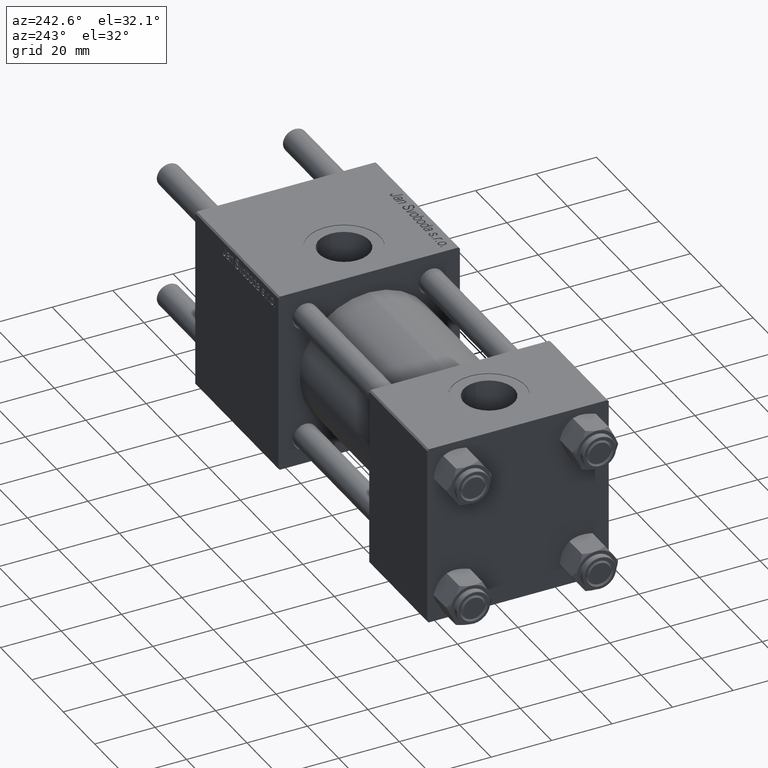
[diagram: clean part render]
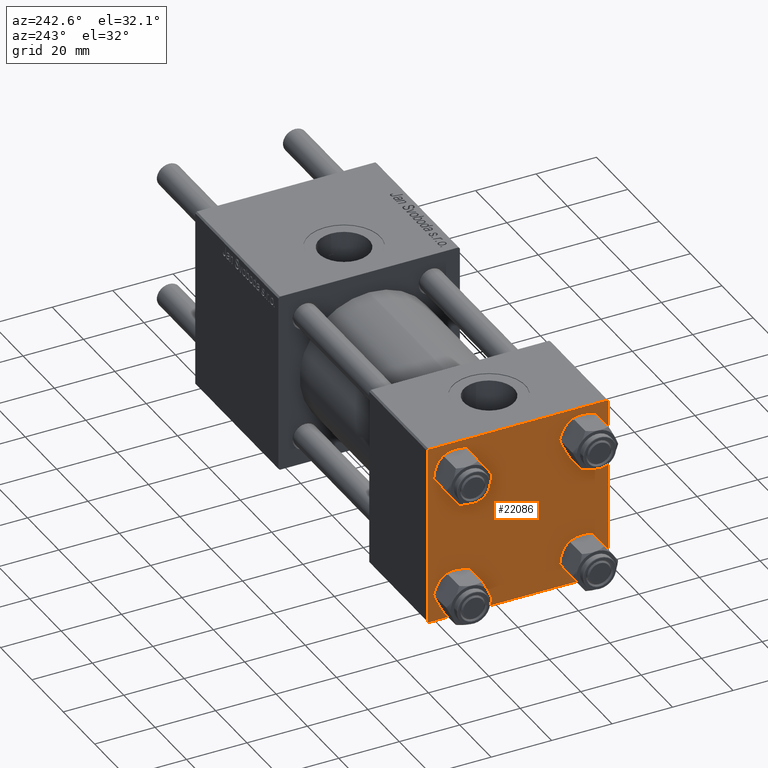
[diagram: same view with one face highlighted and labeled with its STEP entity id]
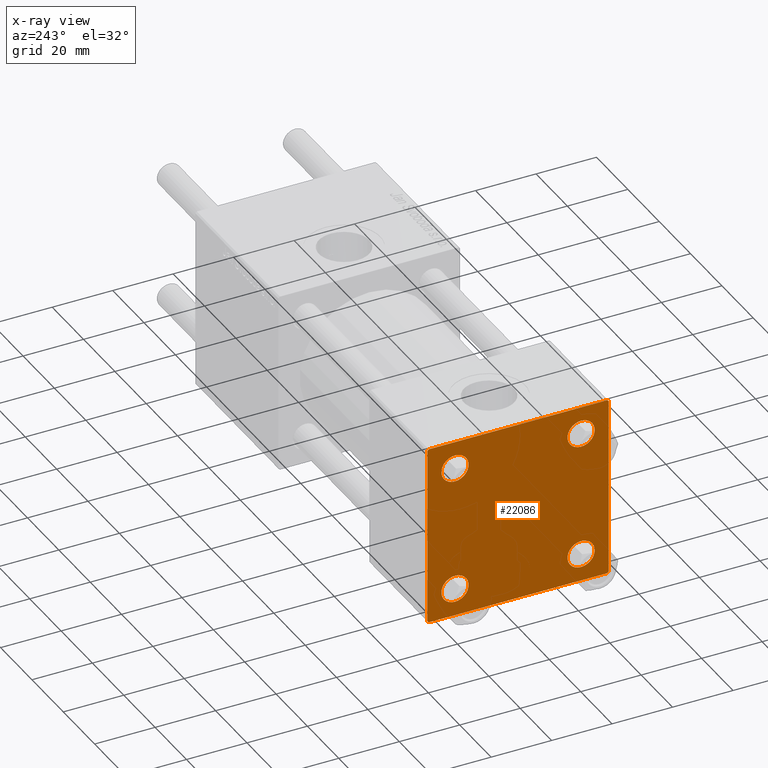
[diagram: x-ray of the same camera — body ghosted, the highlighted face saturated]
A machine part, auxiliary view. The second image highlights one B-rep face of the part: STEP entity #22086.
The next image is the same camera in x-ray: the body ghosted, the highlighted face saturated — about 0% of this face is hidden behind the body in this view.
In plain terms, the highlighted planar face has unit normal (-1, 0, 0).
Its self-contained STEP definition (entity closure, byte-faithful):
#15 = CARTESIAN_POINT ( 'NONE',  ( 0.000000000000000000, -29.50000000000000000, -30.00000000000000711 ) ) ;
#100 = ORIENTED_EDGE ( 'NONE', *, *, #23515, .T. ) ;
#159 = AXIS2_PLACEMENT_3D ( 'NONE', #43685, #3126, #12296 ) ;
#1147 = VERTEX_POINT ( 'NONE', #9539 ) ;
#1240 = DIRECTION ( 'NONE',  ( 1.000000000000000000, -0.000000000000000000, 0.000000000000000000 ) ) ;
#1511 = VERTEX_POINT ( 'NONE', #38172 ) ;
#1673 = CARTESIAN_POINT ( 'NONE',  ( 0.000000000000000000, 29.99999999999999289, -30.00000000000000000 ) ) ;
#2755 = CIRCLE ( 'NONE', #39615, 4.500000000000017764 ) ;
#2804 = DIRECTION ( 'NONE',  ( 0.000000000000000000, 0.7071067811865474617, -0.7071067811865474617 ) ) ;
#2825 = CARTESIAN_POINT ( 'NONE',  ( 0.000000000000000000, 29.99999999999999289, -29.50000000000000000 ) ) ;
#3002 = CARTESIAN_POINT ( 'NONE',  ( 0.000000000000000000, -29.49999999999998579, 29.99999999999999289 ) ) ;
#3080 = ORIENTED_EDGE ( 'NONE', *, *, #20965, .T. ) ;
#3126 = DIRECTION ( 'NONE',  ( -1.000000000000000000, 0.000000000000000000, -0.000000000000000000 ) ) ;
#4496 = VERTEX_POINT ( 'NONE', #27670 ) ;
#4851 = EDGE_CURVE ( 'NONE', #5931, #39167, #8018, .T. ) ;
#5786 = ORIENTED_EDGE ( 'NONE', *, *, #28157, .F. ) ;
#5931 = VERTEX_POINT ( 'NONE', #34797 ) ;
#5942 = CARTESIAN_POINT ( 'NONE',  ( 0.000000000000000000, 20.84999999999999787, -20.85000000000000142 ) ) ;
#6389 = FACE_BOUND ( 'NONE', #25467, .T. ) ;
#6963 = DIRECTION ( 'NONE',  ( 0.000000000000000000, -1.000000000000000000, -1.156482317317871725E-16 ) ) ;
#7235 = LINE ( 'NONE', #34487, #10612 ) ;
#7562 = FACE_BOUND ( 'NONE', #11647, .T. ) ;
#7895 = EDGE_LOOP ( 'NONE', ( #46586, #49580, #11431, #24378, #5786, #100, #47314, #3080 ) ) ;
#8018 = CIRCLE ( 'NONE', #15597, 4.500000000000017764 ) ;
#8142 = CIRCLE ( 'NONE', #23288, 4.500000000000017764 ) ;
#9052 = EDGE_CURVE ( 'NONE', #39167, #5931, #8142, .T. ) ;
#9539 = CARTESIAN_POINT ( 'NONE',  ( 0.000000000000000000, 29.49999999999999289, 30.00000000000000000 ) ) ;
#9681 = LINE ( 'NONE', #27473, #38939 ) ;
#9683 = VECTOR ( 'NONE', #56578, 1000.000000000000114 ) ;
#10342 = CARTESIAN_POINT ( 'NONE',  ( 0.000000000000000000, -20.84999999999999076, 25.35000000000002274 ) ) ;
#10385 = VERTEX_POINT ( 'NONE', #45700 ) ;
#10612 = VECTOR ( 'NONE', #2804, 1000.000000000000114 ) ;
#11431 = ORIENTED_EDGE ( 'NONE', *, *, #40084, .T. ) ;
#11453 = DIRECTION ( 'NONE',  ( 0.000000000000000000, 0.000000000000000000, 1.000000000000000000 ) ) ;
#11647 = EDGE_LOOP ( 'NONE', ( #37422, #13680 ) ) ;
#11668 = DIRECTION ( 'NONE',  ( 1.000000000000000000, -0.000000000000000000, 0.000000000000000000 ) ) ;
#12296 = DIRECTION ( 'NONE',  ( -0.000000000000000000, 0.000000000000000000, 1.000000000000000000 ) ) ;
#12581 = DIRECTION ( 'NONE',  ( 0.000000000000000000, 0.000000000000000000, 1.000000000000000000 ) ) ;
#13680 = ORIENTED_EDGE ( 'NONE', *, *, #40931, .T. ) ;
#13860 = EDGE_CURVE ( 'NONE', #20562, #10385, #32887, .T. ) ;
#14122 = CARTESIAN_POINT ( 'NONE',  ( 0.000000000000000000, 29.99999999999999289, 30.00000000000000000 ) ) ;
#15581 = LINE ( 'NONE', #20323, #54511 ) ;
#15597 = AXIS2_PLACEMENT_3D ( 'NONE', #5942, #1240, #36774 ) ;
#16812 = ORIENTED_EDGE ( 'NONE', *, *, #4851, .T. ) ;
#16900 = DIRECTION ( 'NONE',  ( -0.000000000000000000, 0.7071067811865474617, 0.7071067811865474617 ) ) ;
#18278 = ORIENTED_EDGE ( 'NONE', *, *, #13860, .T. ) ;
#20032 = CARTESIAN_POINT ( 'NONE',  ( 0.000000000000000000, -20.84999999999999076, 20.85000000000000497 ) ) ;
#20179 = VECTOR ( 'NONE', #46271, 999.9999999999998863 ) ;
#20323 = CARTESIAN_POINT ( 'NONE',  ( 0.000000000000000000, 29.99999999999999289, 30.00000000000000000 ) ) ;
#20402 = EDGE_CURVE ( 'NONE', #24082, #50969, #24584, .T. ) ;
#20562 = VERTEX_POINT ( 'NONE', #27492 ) ;
#20654 = DIRECTION ( 'NONE',  ( 1.000000000000000000, -0.000000000000000000, 0.000000000000000000 ) ) ;
#20935 = DIRECTION ( 'NONE',  ( 1.000000000000000000, -0.000000000000000000, 0.000000000000000000 ) ) ;
#20965 = EDGE_CURVE ( 'NONE', #1147, #42459, #7235, .T. ) ;
#21228 = CARTESIAN_POINT ( 'NONE',  ( 0.000000000000000000, -20.84999999999999076, -20.85000000000000497 ) ) ;
#21319 = EDGE_LOOP ( 'NONE', ( #42212, #56373 ) ) ;
#21986 = EDGE_CURVE ( 'NONE', #1147, #26043, #23604, .T. ) ;
#22069 = DIRECTION ( 'NONE',  ( 1.000000000000000000, -0.000000000000000000, 0.000000000000000000 ) ) ;
#22086 = ADVANCED_FACE ( 'NONE', ( #38080, #6389, #52590, #7562, #29202 ), #47254, .T. ) ;
#23259 = VECTOR ( 'NONE', #6963, 1000.000000000000000 ) ;
#23288 = AXIS2_PLACEMENT_3D ( 'NONE', #43438, #20935, #11453 ) ;
#23515 = EDGE_CURVE ( 'NONE', #29002, #26043, #9681, .T. ) ;
#23604 = LINE ( 'NONE', #14122, #39029 ) ;
#24082 = VERTEX_POINT ( 'NONE', #15 ) ;
#24378 = ORIENTED_EDGE ( 'NONE', *, *, #20402, .T. ) ;
#24584 = LINE ( 'NONE', #47649, #9683 ) ;
#25467 = EDGE_LOOP ( 'NONE', ( #37115, #18278 ) ) ;
#26043 = VERTEX_POINT ( 'NONE', #3002 ) ;
#26106 = CARTESIAN_POINT ( 'NONE',  ( 0.000000000000000000, -20.84999999999999076, 20.85000000000000497 ) ) ;
#26819 = VECTOR ( 'NONE', #37472, 1000.000000000000000 ) ;
#27336 = EDGE_CURVE ( 'NONE', #57942, #40842, #28222, .T. ) ;
#27473 = CARTESIAN_POINT ( 'NONE',  ( -0.000000000000000000, -29.74999999999999645, 29.74999999999999645 ) ) ;
#27492 = CARTESIAN_POINT ( 'NONE',  ( 0.000000000000000000, -20.84999999999999076, -25.35000000000002274 ) ) ;
#27670 = CARTESIAN_POINT ( 'NONE',  ( 0.000000000000000000, -20.84999999999999076, 16.34999999999998721 ) ) ;
#28157 = EDGE_CURVE ( 'NONE', #29002, #50969, #55261, .T. ) ;
#28222 = LINE ( 'NONE', #33546, #20179 ) ;
#28617 = DIRECTION ( 'NONE',  ( 1.000000000000000000, -0.000000000000000000, 0.000000000000000000 ) ) ;
#28972 = EDGE_LOOP ( 'NONE', ( #56251, #16812 ) ) ;
#29002 = VERTEX_POINT ( 'NONE', #55051 ) ;
#29202 = FACE_OUTER_BOUND ( 'NONE', #7895, .T. ) ;
#29210 = DIRECTION ( 'NONE',  ( 0.000000000000000000, 0.000000000000000000, 1.000000000000000000 ) ) ;
#30076 = CARTESIAN_POINT ( 'NONE',  ( 0.000000000000000000, 20.84999999999999787, 20.85000000000000142 ) ) ;
#31763 = EDGE_CURVE ( 'NONE', #4496, #34728, #43923, .T. ) ;
#32501 = EDGE_CURVE ( 'NONE', #34728, #4496, #55319, .T. ) ;
#32887 = CIRCLE ( 'NONE', #55606, 4.500000000000017764 ) ;
#33545 = AXIS2_PLACEMENT_3D ( 'NONE', #20032, #28617, #29210 ) ;
#33546 = CARTESIAN_POINT ( 'NONE',  ( 0.000000000000000000, 29.74999999999957723, -29.75000000000040501 ) ) ;
#34487 = CARTESIAN_POINT ( 'NONE',  ( 0.000000000000000000, 29.74999999999999645, 29.74999999999999645 ) ) ;
#34728 = VERTEX_POINT ( 'NONE', #10342 ) ;
#34797 = CARTESIAN_POINT ( 'NONE',  ( 0.000000000000000000, 20.84999999999999787, -25.35000000000001918 ) ) ;
#35554 = CIRCLE ( 'NONE', #47853, 4.500000000000017764 ) ;
#36774 = DIRECTION ( 'NONE',  ( 0.000000000000000000, 0.000000000000000000, 1.000000000000000000 ) ) ;
#37115 = ORIENTED_EDGE ( 'NONE', *, *, #44242, .T. ) ;
#37422 = ORIENTED_EDGE ( 'NONE', *, *, #49244, .T. ) ;
#37472 = DIRECTION ( 'NONE',  ( 0.000000000000000000, 0.000000000000000000, -1.000000000000000000 ) ) ;
#37676 = DIRECTION ( 'NONE',  ( 1.000000000000000000, -0.000000000000000000, 0.000000000000000000 ) ) ;
#38080 = FACE_BOUND ( 'NONE', #21319, .T. ) ;
#38172 = CARTESIAN_POINT ( 'NONE',  ( 0.000000000000000000, 20.84999999999999787, 16.34999999999998366 ) ) ;
#38382 = CARTESIAN_POINT ( 'NONE',  ( 0.000000000000000000, 29.49999999999997868, -30.00000000000000000 ) ) ;
#38939 = VECTOR ( 'NONE', #16900, 1000.000000000000114 ) ;
#39029 = VECTOR ( 'NONE', #41364, 1000.000000000000000 ) ;
#39167 = VERTEX_POINT ( 'NONE', #49190 ) ;
#39280 = DIRECTION ( 'NONE',  ( 0.000000000000000000, 0.000000000000000000, 1.000000000000000000 ) ) ;
#39427 = DIRECTION ( 'NONE',  ( 0.000000000000000000, 0.000000000000000000, 1.000000000000000000 ) ) ;
#39615 = AXIS2_PLACEMENT_3D ( 'NONE', #52257, #11668, #57305 ) ;
#40084 = EDGE_CURVE ( 'NONE', #40842, #24082, #42221, .T. ) ;
#40840 = EDGE_CURVE ( 'NONE', #42459, #57942, #15581, .T. ) ;
#40842 = VERTEX_POINT ( 'NONE', #38382 ) ;
#40931 = EDGE_CURVE ( 'NONE', #1511, #46011, #35554, .T. ) ;
#41364 = DIRECTION ( 'NONE',  ( 0.000000000000000000, -1.000000000000000000, -1.156482317317871725E-16 ) ) ;
#42212 = ORIENTED_EDGE ( 'NONE', *, *, #32501, .T. ) ;
#42221 = LINE ( 'NONE', #1673, #23259 ) ;
#42459 = VERTEX_POINT ( 'NONE', #44929 ) ;
#42524 = DIRECTION ( 'NONE',  ( 0.000000000000000000, 0.000000000000000000, -1.000000000000000000 ) ) ;
#43438 = CARTESIAN_POINT ( 'NONE',  ( 0.000000000000000000, 20.84999999999999787, -20.85000000000000142 ) ) ;
#43685 = CARTESIAN_POINT ( 'NONE',  ( 0.000000000000000000, 0.000000000000000000, 0.000000000000000000 ) ) ;
#43862 = DIRECTION ( 'NONE',  ( 1.000000000000000000, -0.000000000000000000, 0.000000000000000000 ) ) ;
#43908 = CARTESIAN_POINT ( 'NONE',  ( 0.000000000000000000, 20.84999999999999787, 25.35000000000001918 ) ) ;
#43923 = CIRCLE ( 'NONE', #33545, 4.500000000000017764 ) ;
#43963 = AXIS2_PLACEMENT_3D ( 'NONE', #26106, #43862, #39427 ) ;
#44242 = EDGE_CURVE ( 'NONE', #10385, #20562, #46066, .T. ) ;
#44929 = CARTESIAN_POINT ( 'NONE',  ( 0.000000000000000000, 29.99999999999999289, 29.50000000000000000 ) ) ;
#45700 = CARTESIAN_POINT ( 'NONE',  ( 0.000000000000000000, -20.84999999999999076, -16.34999999999998721 ) ) ;
#46011 = VERTEX_POINT ( 'NONE', #43908 ) ;
#46066 = CIRCLE ( 'NONE', #53659, 4.500000000000017764 ) ;
#46271 = DIRECTION ( 'NONE',  ( -0.000000000000000000, -0.7071067811865574537, -0.7071067811865376918 ) ) ;
#46586 = ORIENTED_EDGE ( 'NONE', *, *, #40840, .T. ) ;
#47134 = CARTESIAN_POINT ( 'NONE',  ( 0.000000000000000000, -20.84999999999999076, -20.85000000000000497 ) ) ;
#47254 = PLANE ( 'NONE',  #159 ) ;
#47314 = ORIENTED_EDGE ( 'NONE', *, *, #21986, .F. ) ;
#47511 = CARTESIAN_POINT ( 'NONE',  ( 0.000000000000000000, -30.00000000000000000, 29.99999999999999289 ) ) ;
#47649 = CARTESIAN_POINT ( 'NONE',  ( 0.000000000000000000, -29.75000000000001066, -29.75000000000001066 ) ) ;
#47853 = AXIS2_PLACEMENT_3D ( 'NONE', #30076, #22069, #12581 ) ;
#49190 = CARTESIAN_POINT ( 'NONE',  ( 0.000000000000000000, 20.84999999999999787, -16.34999999999998366 ) ) ;
#49244 = EDGE_CURVE ( 'NONE', #46011, #1511, #2755, .T. ) ;
#49580 = ORIENTED_EDGE ( 'NONE', *, *, #27336, .T. ) ;
#49866 = CARTESIAN_POINT ( 'NONE',  ( 0.000000000000000000, -30.00000000000000000, -29.50000000000001776 ) ) ;
#50969 = VERTEX_POINT ( 'NONE', #49866 ) ;
#52257 = CARTESIAN_POINT ( 'NONE',  ( 0.000000000000000000, 20.84999999999999787, 20.85000000000000142 ) ) ;
#52590 = FACE_BOUND ( 'NONE', #28972, .T. ) ;
#53659 = AXIS2_PLACEMENT_3D ( 'NONE', #47134, #37676, #55764 ) ;
#54511 = VECTOR ( 'NONE', #42524, 1000.000000000000000 ) ;
#55051 = CARTESIAN_POINT ( 'NONE',  ( 0.000000000000000000, -30.00000000000000000, 29.49999999999999289 ) ) ;
#55261 = LINE ( 'NONE', #47511, #26819 ) ;
#55319 = CIRCLE ( 'NONE', #43963, 4.500000000000017764 ) ;
#55606 = AXIS2_PLACEMENT_3D ( 'NONE', #21228, #20654, #39280 ) ;
#55764 = DIRECTION ( 'NONE',  ( 0.000000000000000000, 0.000000000000000000, 1.000000000000000000 ) ) ;
#56251 = ORIENTED_EDGE ( 'NONE', *, *, #9052, .T. ) ;
#56373 = ORIENTED_EDGE ( 'NONE', *, *, #31763, .T. ) ;
#56578 = DIRECTION ( 'NONE',  ( 0.000000000000000000, -0.7071067811865474617, 0.7071067811865474617 ) ) ;
#57305 = DIRECTION ( 'NONE',  ( 0.000000000000000000, 0.000000000000000000, 1.000000000000000000 ) ) ;
#57942 = VERTEX_POINT ( 'NONE', #2825 ) ;